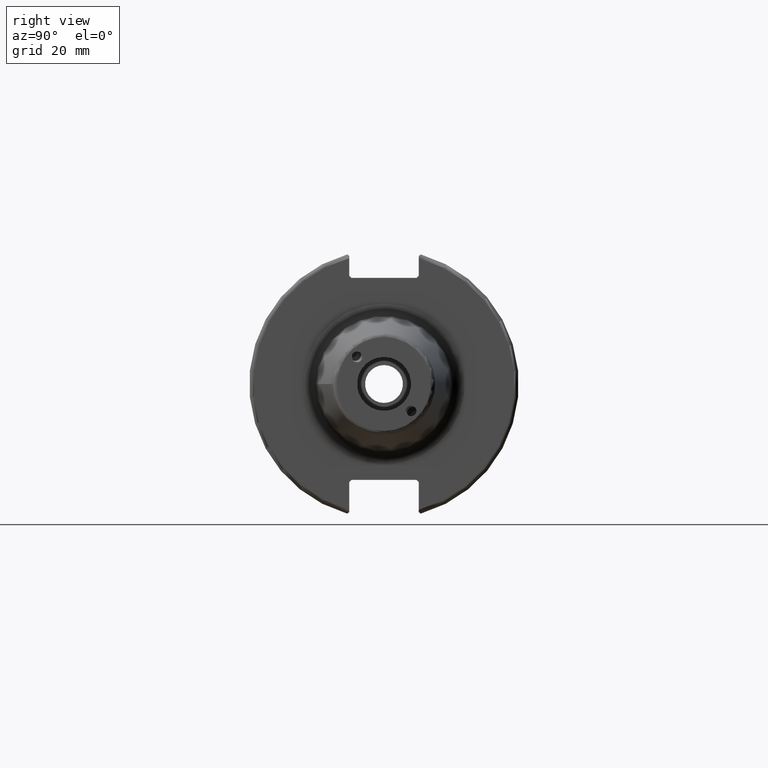
[diagram: clean part render]
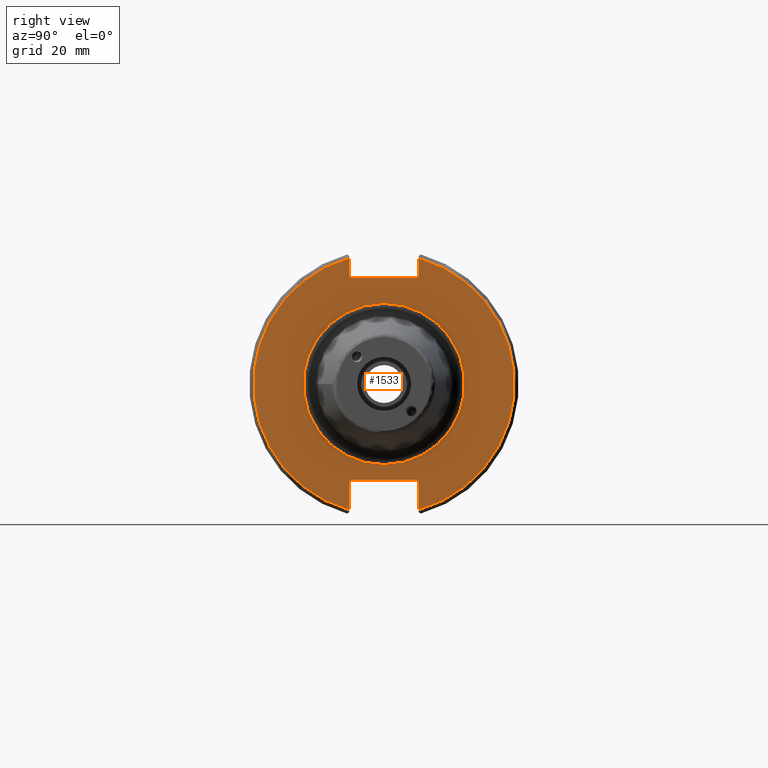
[diagram: same view with one face highlighted and labeled with its STEP entity id]
A machine part, right view. The second image highlights one B-rep face of the part: STEP entity #1533.
In plain terms, the highlighted planar face has unit normal (1, 0, 0).
Its self-contained STEP definition (entity closure, byte-faithful):
#64=FACE_BOUND('',#243,.T.);
#103=PLANE('',#1661);
#148=FACE_OUTER_BOUND('',#242,.T.);
#242=EDGE_LOOP('',(#1053,#1054,#1055,#1056,#1057,#1058,#1059,#1060,#1061,
#1062,#1063,#1064));
#243=EDGE_LOOP('',(#1065));
#349=CIRCLE('',#1658,19.);
#351=CIRCLE('',#1662,30.75);
#352=CIRCLE('',#1663,30.75);
#418=LINE('',#2339,#514);
#419=LINE('',#2341,#515);
#420=LINE('',#2343,#516);
#421=LINE('',#2345,#517);
#422=LINE('',#2347,#518);
#423=LINE('',#2351,#519);
#424=LINE('',#2353,#520);
#425=LINE('',#2355,#521);
#426=LINE('',#2357,#522);
#427=LINE('',#2358,#523);
#514=VECTOR('',#1880,10.);
#515=VECTOR('',#1881,10.);
#516=VECTOR('',#1882,10.);
#517=VECTOR('',#1883,10.);
#518=VECTOR('',#1884,10.);
#519=VECTOR('',#1887,10.);
#520=VECTOR('',#1888,10.);
#521=VECTOR('',#1889,10.);
#522=VECTOR('',#1890,10.);
#523=VECTOR('',#1891,10.);
#637=VERTEX_POINT('',#2328);
#638=VERTEX_POINT('',#2335);
#639=VERTEX_POINT('',#2336);
#640=VERTEX_POINT('',#2338);
#641=VERTEX_POINT('',#2340);
#642=VERTEX_POINT('',#2342);
#643=VERTEX_POINT('',#2344);
#644=VERTEX_POINT('',#2346);
#645=VERTEX_POINT('',#2348);
#646=VERTEX_POINT('',#2350);
#647=VERTEX_POINT('',#2352);
#648=VERTEX_POINT('',#2354);
#649=VERTEX_POINT('',#2356);
#797=EDGE_CURVE('',#637,#637,#349,.T.);
#800=EDGE_CURVE('',#638,#639,#351,.T.);
#801=EDGE_CURVE('',#638,#640,#418,.T.);
#802=EDGE_CURVE('',#641,#640,#419,.T.);
#803=EDGE_CURVE('',#641,#642,#420,.T.);
#804=EDGE_CURVE('',#643,#642,#421,.T.);
#805=EDGE_CURVE('',#643,#644,#422,.T.);
#806=EDGE_CURVE('',#645,#644,#352,.T.);
#807=EDGE_CURVE('',#645,#646,#423,.T.);
#808=EDGE_CURVE('',#647,#646,#424,.T.);
#809=EDGE_CURVE('',#647,#648,#425,.T.);
#810=EDGE_CURVE('',#649,#648,#426,.T.);
#811=EDGE_CURVE('',#649,#639,#427,.T.);
#1053=ORIENTED_EDGE('',*,*,#800,.F.);
#1054=ORIENTED_EDGE('',*,*,#801,.T.);
#1055=ORIENTED_EDGE('',*,*,#802,.F.);
#1056=ORIENTED_EDGE('',*,*,#803,.T.);
#1057=ORIENTED_EDGE('',*,*,#804,.F.);
#1058=ORIENTED_EDGE('',*,*,#805,.T.);
#1059=ORIENTED_EDGE('',*,*,#806,.F.);
#1060=ORIENTED_EDGE('',*,*,#807,.T.);
#1061=ORIENTED_EDGE('',*,*,#808,.F.);
#1062=ORIENTED_EDGE('',*,*,#809,.T.);
#1063=ORIENTED_EDGE('',*,*,#810,.F.);
#1064=ORIENTED_EDGE('',*,*,#811,.T.);
#1065=ORIENTED_EDGE('',*,*,#797,.F.);
#1533=ADVANCED_FACE('',(#148,#64),#103,.T.);
#1658=AXIS2_PLACEMENT_3D('',#2330,#1869,#1870);
#1661=AXIS2_PLACEMENT_3D('',#2334,#1876,#1877);
#1662=AXIS2_PLACEMENT_3D('',#2337,#1878,#1879);
#1663=AXIS2_PLACEMENT_3D('',#2349,#1885,#1886);
#1869=DIRECTION('center_axis',(1.,0.,0.));
#1870=DIRECTION('ref_axis',(0.,-1.,-1.22464679914735E-16));
#1876=DIRECTION('center_axis',(1.,0.,0.));
#1877=DIRECTION('ref_axis',(0.,0.,-1.));
#1878=DIRECTION('center_axis',(-1.,0.,0.));
#1879=DIRECTION('ref_axis',(0.,1.,-6.12323399573677E-17));
#1880=DIRECTION('',(0.,0.,-1.));
#1881=DIRECTION('',(0.,0.707106781186549,0.707106781186546));
#1882=DIRECTION('',(0.,-1.,0.));
#1883=DIRECTION('',(0.,0.70710678118655,-0.707106781186545));
#1884=DIRECTION('',(0.,0.,1.));
#1885=DIRECTION('center_axis',(-1.,0.,0.));
#1886=DIRECTION('ref_axis',(0.,-1.,1.60812264967664E-16));
#1887=DIRECTION('',(0.,0.,1.));
#1888=DIRECTION('',(0.,-0.707106781186549,-0.707106781186546));
#1889=DIRECTION('',(0.,1.,0.));
#1890=DIRECTION('',(0.,-0.707106781186549,0.707106781186546));
#1891=DIRECTION('',(0.,0.,-1.));
#2328=CARTESIAN_POINT('',(19.05,-2.32682891837997E-15,-19.));
#2330=CARTESIAN_POINT('Origin',(19.05,0.,0.));
#2334=CARTESIAN_POINT('Origin',(19.05,0.,0.));
#2335=CARTESIAN_POINT('',(19.05,8.19,29.6392712461019));
#2336=CARTESIAN_POINT('',(19.05,8.19,-29.6392712461019));
#2337=CARTESIAN_POINT('Origin',(19.05,0.,0.));
#2338=CARTESIAN_POINT('',(19.05,8.19,25.5));
#2339=CARTESIAN_POINT('',(19.05,8.19,12.5));
#2340=CARTESIAN_POINT('',(19.05,7.69,25.));
#2341=CARTESIAN_POINT('',(19.05,-0.35750000000001,16.9525));
#2342=CARTESIAN_POINT('',(19.05,-7.69,25.));
#2343=CARTESIAN_POINT('',(19.05,0.,25.));
#2344=CARTESIAN_POINT('',(19.05,-8.19,25.5));
#2345=CARTESIAN_POINT('',(19.05,0.357500000000014,16.9525));
#2346=CARTESIAN_POINT('',(19.05,-8.19,29.6392712461019));
#2347=CARTESIAN_POINT('',(19.05,-8.19,12.5));
#2348=CARTESIAN_POINT('',(19.05,-8.19,-29.6392712461019));
#2349=CARTESIAN_POINT('Origin',(19.05,0.,0.));
#2350=CARTESIAN_POINT('',(19.05,-8.19,-23.1));
#2351=CARTESIAN_POINT('',(19.05,-8.19,-11.3));
#2352=CARTESIAN_POINT('',(19.05,-7.69,-22.6));
#2353=CARTESIAN_POINT('',(19.05,-0.242499999999991,-15.1525));
#2354=CARTESIAN_POINT('',(19.05,7.69,-22.6));
#2355=CARTESIAN_POINT('',(19.05,-2.77555756156289E-16,-22.6));
#2356=CARTESIAN_POINT('',(19.05,8.19,-23.1));
#2357=CARTESIAN_POINT('',(19.05,0.242499999999989,-15.1525));
#2358=CARTESIAN_POINT('',(19.05,8.19,-11.3));